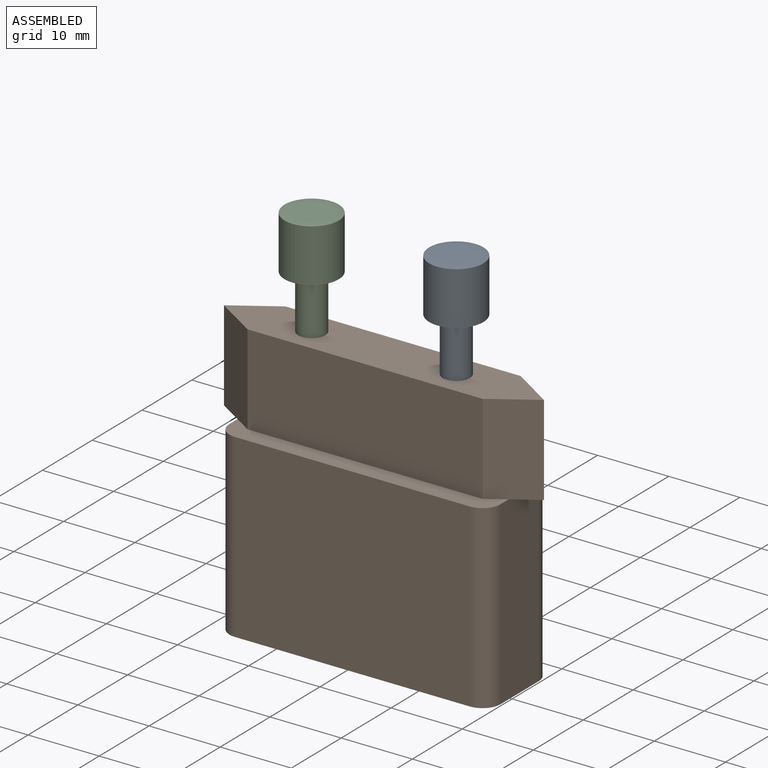
[diagram: assembled view]
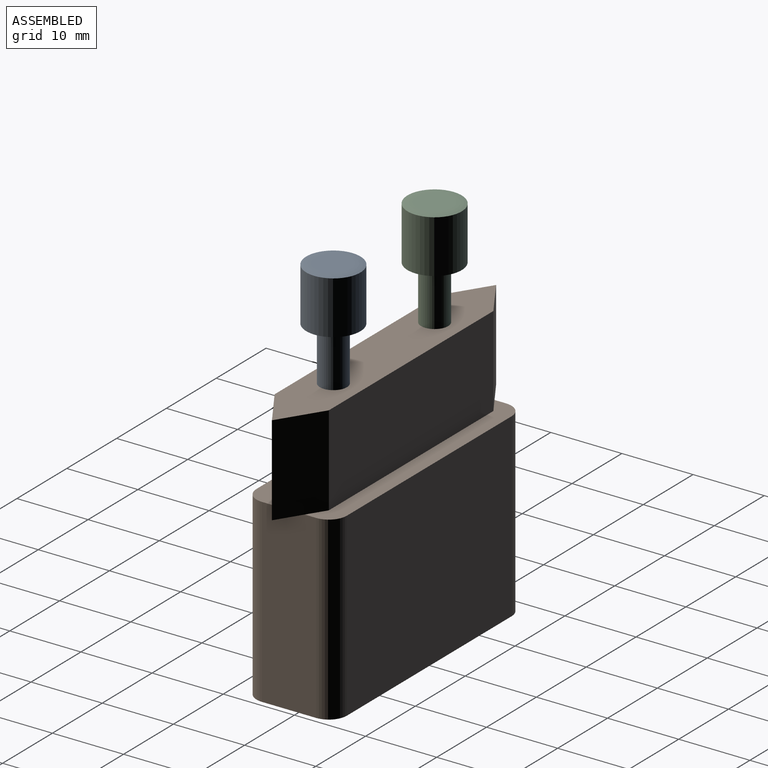
[diagram: assembled view, second angle]
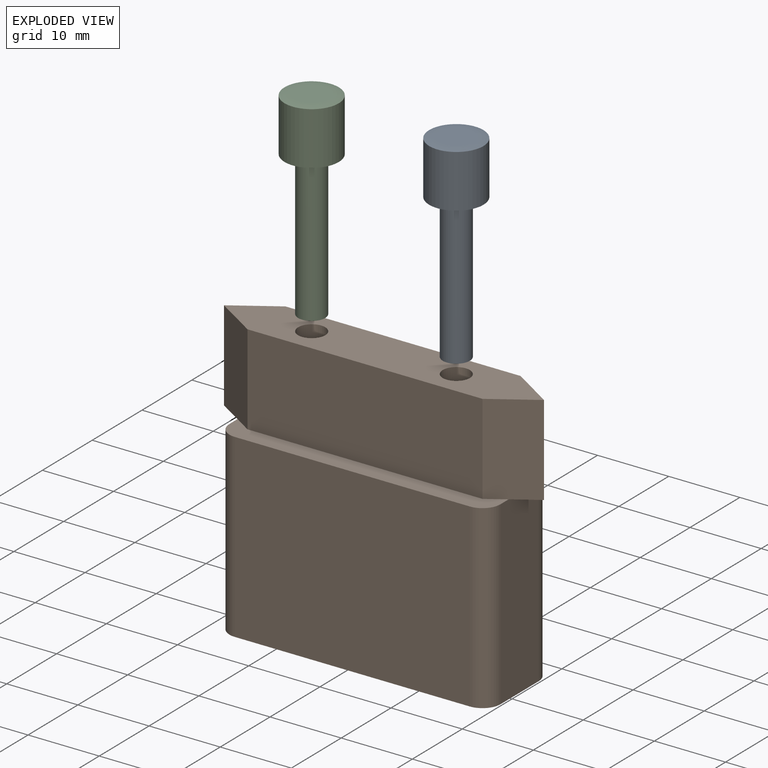
[diagram: exploded view]
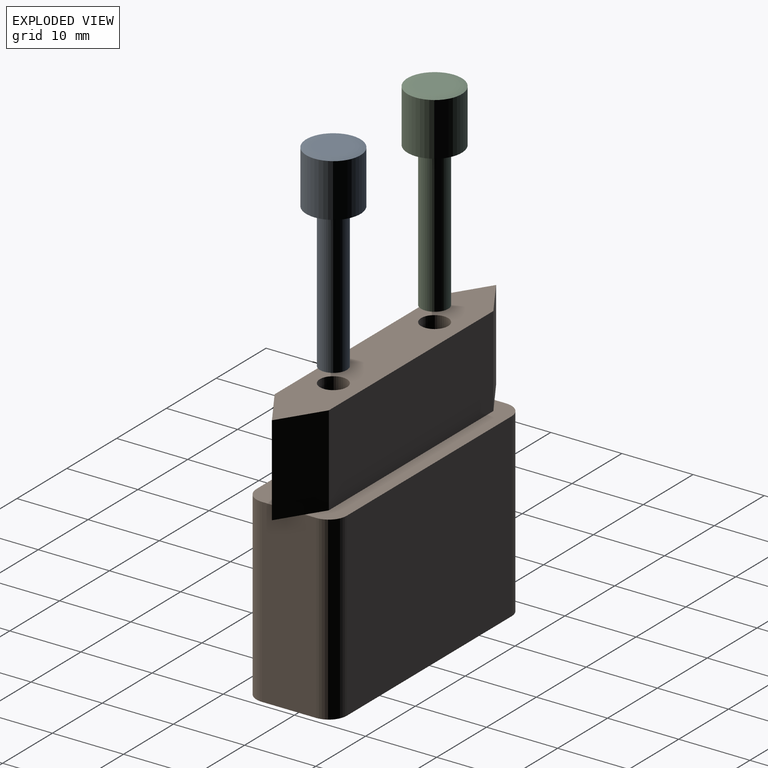
[diagram: exploded view, second angle]
ASSEMBLY  parts=3 mates=2
PART A: 6 faces, bbox 7.6x7.6x27.9 mm
  f0: plane 7.62x7.62mm, normal (0,0,-1), area 34.2mm2, adj f1,f3
  f1: cylinder r=1.91mm len=20.32mm, axis (0,0,-1), area 243.2mm2, adj f0,f2
  f2: plane 3.81x3.81mm, normal (0,0,-1), area 11.4mm2, adj f1
  f3: cylinder r=3.81mm len=7.62mm, axis (0,0,-1), area 178.6mm2, adj f0,f5
  f4: plane 5.08x5.08mm, normal (0,0,1), area 20.3mm2, adj f5
  f5: torus R=2.54mm, axis (0,0,-1), area 25.6mm2, adj f3,f4
PART B: 34 faces, bbox 45x12.7x38.1 mm
  f0: plane 38.1x12.7mm, normal (0,0,-1), area 413.8mm2, adj f2,f3,f4,f5,f7,f8,f9,f10
  f1: plane 38.1x4.16mm, normal (0,0,1), area 98.1mm2, adj f3,f4,f5,f8,f9,f12,f16,f17
  f2: plane 33.02x25.4mm, normal (0,-1,0), area 838.7mm2, adj f0,f6,f7,f10
  f3: plane 25.4x7.62mm, normal (1,0,0), area 193.5mm2, adj f0,f1,f6,f7,f8,f11
  f4: plane 33.02x25.4mm, normal (0,1,0), area 838.7mm2, adj f0,f1,f8,f9
  f5: plane 25.4x7.62mm, normal (-1,0,0), area 193.5mm2, adj f0,f1,f6,f9,f10,f19
  f6: plane 38.1x4.16mm, normal (0,0,1), area 98.1mm2, adj f2,f3,f5,f7,f10,f13,f14,f15
  f7: cylinder r=2.54mm len=25.4mm, axis (0,0,1), area 101.3mm2, adj f0,f2,f3,f6
  f8: cylinder r=2.54mm len=25.4mm, axis (0,0,-1), area 101.3mm2, adj f0,f1,f3,f4
  f9: cylinder r=2.54mm len=25.4mm, axis (0,0,1), area 101.3mm2, adj f0,f1,f4,f5
  f10: cylinder r=2.54mm len=25.4mm, axis (0,0,-1), area 101.3mm2, adj f0,f2,f5,f6
  f11: plane 4.38x3.44mm, normal (0,0,-1), area 7.5mm2, adj f3,f15,f16
  f12: plane 12.7x5.98mm, normal (-0.54,0.84,0), area 90.1mm2, adj f1,f13,f17,f18,f19
  f13: plane 12.7x5.98mm, normal (-0.54,-0.84,0), area 90.1mm2, adj f6,f12,f14,f18,f19
  f14: plane 33.02x12.7mm, normal (0,-1,0), area 419.4mm2, adj f6,f13,f15,f18
  f15: plane 12.7x5.98mm, normal (0.54,-0.84,0), area 90.1mm2, adj f6,f11,f14,f16,f18
  f16: plane 12.7x5.98mm, normal (0.54,0.84,0), area 90.1mm2, adj f1,f11,f15,f17,f18
  f17: plane 33.02x12.7mm, normal (0,1,0), area 419.4mm2, adj f1,f12,f16,f18
  f18: plane 44.98x7.62mm, normal (0,0,1), area 274.4mm2, adj f12,f13,f14,f15,f16,f17,f20,f22
  f19: plane 4.38x3.44mm, normal (0,0,-1), area 7.5mm2, adj f5,f12,f13
  f20: cylinder r=1.91mm len=12.7mm, axis (0,0,1), area 152mm2, adj f18,f21
  f21: plane 3.81x3.81mm, normal (0,0,1), area 11.4mm2, adj f20
  f22: cylinder r=1.91mm len=12.7mm, axis (0,0,1), area 152mm2, adj f18,f23
  f23: plane 3.81x3.81mm, normal (0,0,1), area 11.4mm2, adj f22
  f24: plane 7.62x2.54mm, normal (1,0,0), area 19.4mm2, adj f0,f25,f27,f28
  f25: plane 12.7x7.62mm, normal (0,-1,0), area 96.8mm2, adj f0,f24,f26,f28
  f26: plane 7.62x2.54mm, normal (-1,0,0), area 19.4mm2, adj f0,f25,f27,f28
  f27: plane 12.7x7.62mm, normal (0,1,0), area 96.8mm2, adj f0,f24,f26,f28
  f28: plane 12.7x2.54mm, normal (0,0,-1), area 32.3mm2, adj f24,f25,f26,f27
  f29: plane 12.7x7.62mm, normal (0,1,0), area 96.8mm2, adj f0,f30,f32,f33
  f30: plane 7.62x2.54mm, normal (1,0,0), area 19.4mm2, adj f0,f29,f31,f33
  f31: plane 12.7x7.62mm, normal (0,-1,0), area 96.8mm2, adj f0,f30,f32,f33
  f32: plane 7.62x2.54mm, normal (-1,0,0), area 19.4mm2, adj f0,f29,f31,f33
  f33: plane 12.7x2.54mm, normal (0,0,-1), area 32.3mm2, adj f29,f30,f31,f32
PART C: same geometry as A
PLACE A t=(12.17,0,-3.96)mm
PLACE B t=(2.01,0,-29.36)mm
PLACE C t=(-8.15,0,-3.96)mm
MATE fastened B.f20 <-> A.f1  axis (0,0,1) through (12.17,0,-3.96)mm
MATE fastened B.f22 <-> C.f1  axis (0,0,1) through (-8.15,0,-3.96)mm
